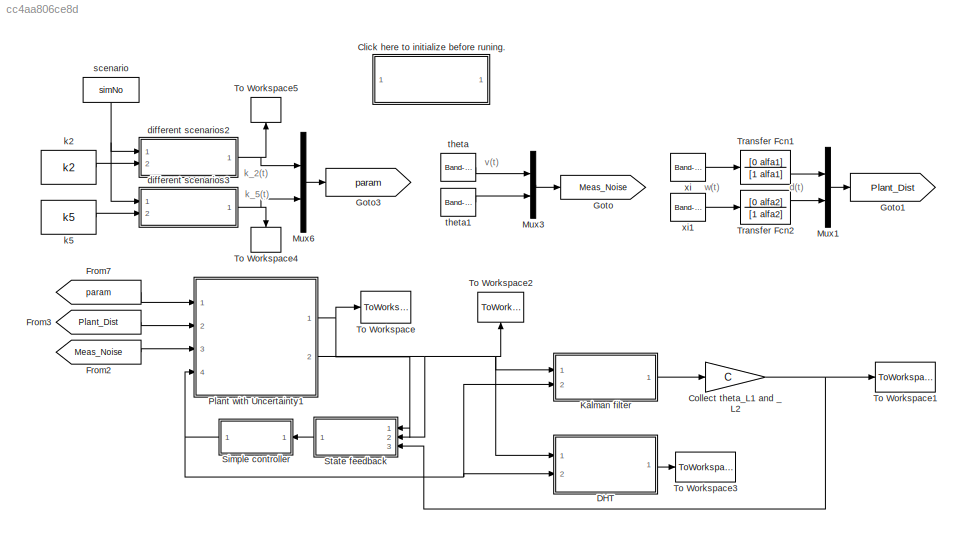
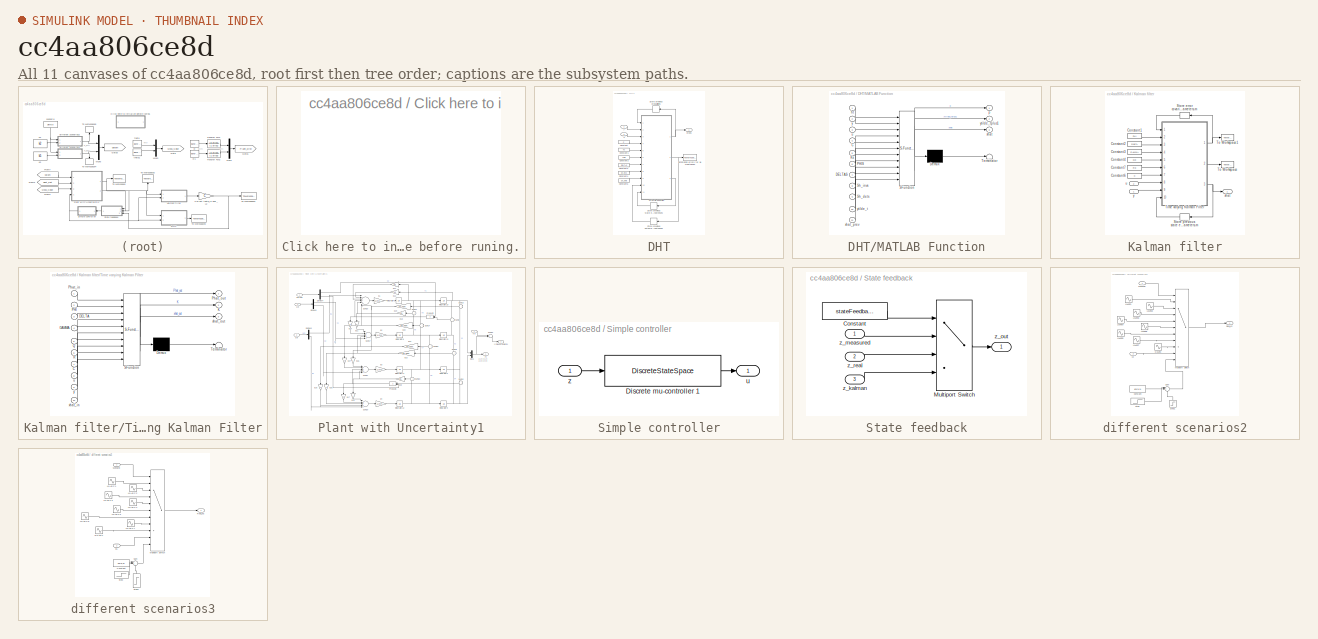
[diagram: thumbnail index - all 11 canvases of the model, root first then tree order]
MODEL slx_cc4aa806ce8d
KIND model
CONFIG AbsTol = auto
CONFIG EnableMultiTasking = on
CONFIG FixedStep = Ts
CONFIG MaxStep = auto
CONFIG MinStep = auto
CONFIG RelTol = 1e-3
CONFIG SampleTimeConstraint = Unconstrained
CONFIG Solver = ode45
CONFIG SolverName = ode45
CONFIG StartTime = 0.0
CONFIG StopTime = simTime
BLOCK [SubSystem] Click here to initialize before runing.
  OpenFcn = start_up
  Ports = []
  RequestExecContextInheritance = off
BLOCK [Gain] Collect theta_L1 and _L2
  Gain = C
  Multiplication = Matrix(K*u)
  OutDataTypeStr = Inherit: Inherit via internal rule
  ParamDataTypeStr = Inherit: Inherit via internal rule
  SaturateOnIntegerOverflow = off
BLOCK [SubSystem] DHT
  Ports = [2, 1]
  RequestExecContextInheritance = off
BLOCK [Constant] DHT/Constant
  Value = C
BLOCK [Constant] DHT/Constant1
  Value = Ks
BLOCK [Constant] DHT/Constant2
  Value = PHIS
BLOCK [Constant] DHT/Constant3
  Value = DELTAS
BLOCK [Constant] DHT/Constant4
  Value = Sh_invs
BLOCK [Constant] DHT/Constant5
  Value = Sh_dets
BLOCK [ToWorkspace] DHT/Estimation errors for all hypotheses
  FixptAsFi = on
  MaxDataPoints = inf
  Ports = [1]
  SampleTime = -1
  SaveFormat = Timeseries
  VariableName = ytilde
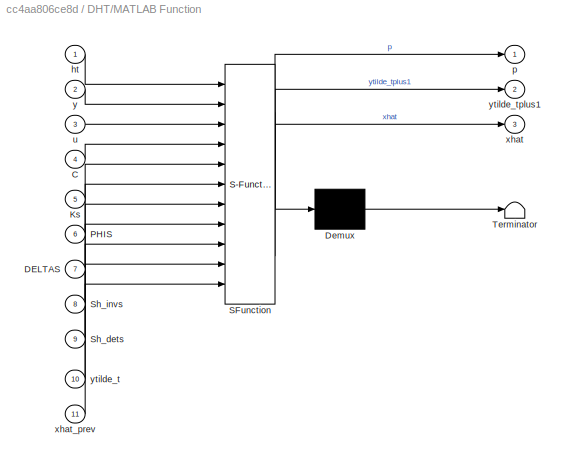
BLOCK [SubSystem] DHT/MATLAB Function
  ErrorFcn = Stateflow.Translate.translate
  PermitHierarchicalResolution = ExplicitOnly
  Ports = [11, 3]
  RequestExecContextInheritance = off
  SFBlockType = MATLAB Function
  TreatAsAtomicUnit = on
BLOCK [Demux] DHT/MATLAB Function/ Demux 
  Outputs = 1
  Ports = [1, 1]
BLOCK [S-Function] DHT/MATLAB Function/ SFunction 
  EnableBusSupport = on
  FunctionName = sf_sfun
  PortCounts = [11 4]
  Ports = [11, 4]
  SFcnIsStateOwnerBlock = off
  SFunctionDeploymentMode = off
  Tag = Stateflow S-Function main 4
BLOCK [Terminator] DHT/MATLAB Function/ Terminator 
BLOCK [Inport] DHT/MATLAB Function/C
  IconDisplay = Port number
  Port = 4
BLOCK [Inport] DHT/MATLAB Function/DELTAS
  IconDisplay = Port number
  Port = 7
BLOCK [Inport] DHT/MATLAB Function/Ks
  IconDisplay = Port number
  Port = 5
BLOCK [Inport] DHT/MATLAB Function/PHIS
  IconDisplay = Port number
  Port = 6
BLOCK [Inport] DHT/MATLAB Function/Sh_dets
  IconDisplay = Port number
  Port = 9
BLOCK [Inport] DHT/MATLAB Function/Sh_invs
  IconDisplay = Port number
  Port = 8
BLOCK [Inport] DHT/MATLAB Function/ht
  IconDisplay = Port number
BLOCK [Outport] DHT/MATLAB Function/p
  IconDisplay = Port number
BLOCK [Inport] DHT/MATLAB Function/u
  IconDisplay = Port number
  Port = 3
BLOCK [Outport] DHT/MATLAB Function/xhat
  IconDisplay = Port number
  Port = 3
BLOCK [Inport] DHT/MATLAB Function/xhat_prev
  IconDisplay = Port number
  Port = 11
BLOCK [Inport] DHT/MATLAB Function/y
  IconDisplay = Port number
  Port = 2
BLOCK [Inport] DHT/MATLAB Function/ytilde_t
  IconDisplay = Port number
  Port = 10
BLOCK [Outport] DHT/MATLAB Function/ytilde_tplus1
  IconDisplay = Port number
  Port = 2
BLOCK [Memory] DHT/Store previous estomation errors for all hypotheses
  InitialCondition = [zeros(2,1) zeros(2,1) zeros(2,1)]
BLOCK [Memory] DHT/Store previous probabilities
  InitialCondition = initial_probs
BLOCK [Memory] DHT/Store previous state estimations for all hypotheses
  InitialCondition = [initial_state initial_state initial_state]
BLOCK [Outport] DHT/probs
  IconDisplay = Port number
BLOCK [Inport] DHT/u
  IconDisplay = Port number
  Port = 2
BLOCK [Inport] DHT/y
  IconDisplay = Port number
BLOCK [From] From2
  GotoTag = Meas_Noise
BLOCK [From] From3
  GotoTag = Plant_Dist
BLOCK [From] From7
  GotoTag = param
BLOCK [Goto] Goto
  GotoTag = Meas_Noise
BLOCK [Goto] Goto1
  GotoTag = Plant_Dist
BLOCK [Goto] Goto3
  GotoTag = param
BLOCK [SubSystem] Kalman filter
  Ports = [2, 1]
  RequestExecContextInheritance = off
BLOCK [Constant] Kalman filter/Constant1
  Value = PHI
BLOCK [Constant] Kalman filter/Constant2
  Value = DELTA
BLOCK [Constant] Kalman filter/Constant3
  Value = GAMMA
BLOCK [Constant] Kalman filter/Constant4
  Value = Qd
BLOCK [Constant] Kalman filter/Constant6
  Value = C
BLOCK [Constant] Kalman filter/Constant7
  Value = Rd
BLOCK [Memory] Kalman filter/Store error covariance Initial P set in parameters.m
  InitialCondition = initial_P
BLOCK [Memory] Kalman filter/Store previous state estimaton Initial state set in parameters.m
  InitialCondition = initial_state
BLOCK [SubSystem] Kalman filter/Time varying Kalman Filter
  ErrorFcn = Stateflow.Translate.translate
  PermitHierarchicalResolution = ExplicitOnly
  Ports = [10, 3]
  RequestExecContextInheritance = off
  SFBlockType = MATLAB Function
  TreatAsAtomicUnit = on
BLOCK [Demux] Kalman filter/Time varying Kalman Filter/ Demux 
  Outputs = 1
  Ports = [1, 1]
BLOCK [S-Function] Kalman filter/Time varying Kalman Filter/ SFunction 
  EnableBusSupport = on
  FunctionName = sf_sfun
  PortCounts = [10 4]
  Ports = [10, 4]
  SFcnIsStateOwnerBlock = off
  SFunctionDeploymentMode = off
  Tag = Stateflow S-Function main 2
BLOCK [Terminator] Kalman filter/Time varying Kalman Filter/ Terminator 
BLOCK [Inport] Kalman filter/Time varying Kalman Filter/C
  IconDisplay = Port number
  Port = 7
BLOCK [Inport] Kalman filter/Time varying Kalman Filter/DELTA
  IconDisplay = Port number
  Port = 3
BLOCK [Inport] Kalman filter/Time varying Kalman Filter/GAMMA
  IconDisplay = Port number
  Port = 4
BLOCK [Outport] Kalman filter/Time varying Kalman Filter/K
  IconDisplay = Port number
  Port = 2
BLOCK [Inport] Kalman filter/Time varying Kalman Filter/PHI
  IconDisplay = Port number
  Port = 2
BLOCK [Inport] Kalman filter/Time varying Kalman Filter/Phat_in
  IconDisplay = Port number
BLOCK [Outport] Kalman filter/Time varying Kalman Filter/Phat_out
  IconDisplay = Port number
BLOCK [Inport] Kalman filter/Time varying Kalman Filter/Q
  IconDisplay = Port number
  Port = 5
BLOCK [Inport] Kalman filter/Time varying Kalman Filter/R
  IconDisplay = Port number
  Port = 6
BLOCK [Inport] Kalman filter/Time varying Kalman Filter/u
  IconDisplay = Port number
  Port = 8
BLOCK [Inport] Kalman filter/Time varying Kalman Filter/xhat_in
  IconDisplay = Port number
  Port = 10
BLOCK [Outport] Kalman filter/Time varying Kalman Filter/xhat_out
  IconDisplay = Port number
  Port = 3
BLOCK [Inport] Kalman filter/Time varying Kalman Filter/y
  IconDisplay = Port number
  Port = 9
BLOCK [ToWorkspace] Kalman filter/To Workspace
  FixptAsFi = on
  MaxDataPoints = inf
  Ports = [1]
  SampleTime = -1
  SaveFormat = Timeseries
  VariableName = K_out
BLOCK [ToWorkspace] Kalman filter/To Workspace1
  FixptAsFi = on
  MaxDataPoints = inf
  Ports = [1]
  SampleTime = -1
  SaveFormat = Timeseries
  VariableName = P_out
BLOCK [Inport] Kalman filter/u
  IconDisplay = Port number
  Port = 2
BLOCK [Outport] Kalman filter/xhat 
  IconDisplay = Port number
BLOCK [Inport] Kalman filter/y
  IconDisplay = Port number
BLOCK [Mux] Mux1
  DisplayOption = bar
  Inputs = 2
  Ports = [2, 1]
BLOCK [Mux] Mux3
  DisplayOption = bar
  Inputs = 2
  Ports = [2, 1]
BLOCK [Mux] Mux6
  DisplayOption = bar
  Inputs = 2
  Ports = [2, 1]
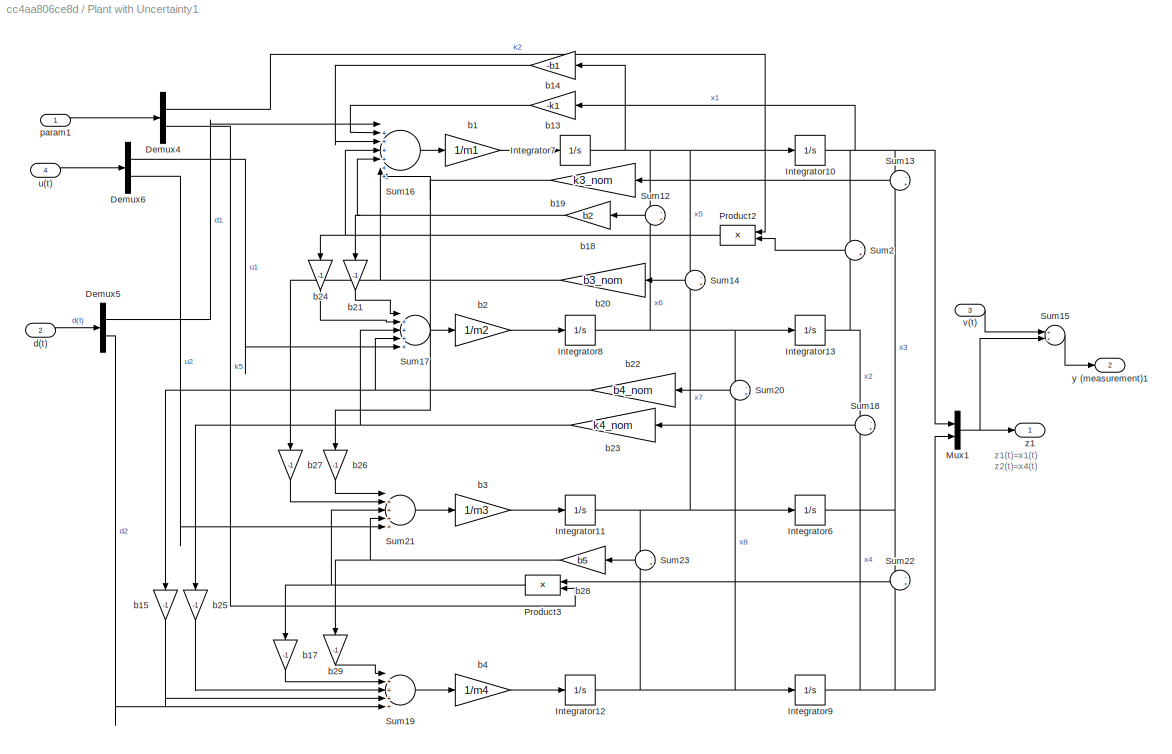
BLOCK [SubSystem] Plant with Uncertainty1
  Ports = [4, 2]
  RequestExecContextInheritance = off
BLOCK [Demux] Plant with Uncertainty1/Demux4
  DisplayOption = bar
  Outputs = 2
  Ports = [1, 2]
BLOCK [Demux] Plant with Uncertainty1/Demux5
  DisplayOption = bar
  Outputs = 2
  Ports = [1, 2]
BLOCK [Demux] Plant with Uncertainty1/Demux6
  DisplayOption = bar
  Outputs = 2
  Ports = [1, 2]
BLOCK [Integrator] Plant with Uncertainty1/Integrator10
  Ports = [1, 1]
BLOCK [Integrator] Plant with Uncertainty1/Integrator11
  Ports = [1, 1]
BLOCK [Integrator] Plant with Uncertainty1/Integrator12
  Ports = [1, 1]
BLOCK [Integrator] Plant with Uncertainty1/Integrator13
  Ports = [1, 1]
BLOCK [Integrator] Plant with Uncertainty1/Integrator6
  Ports = [1, 1]
BLOCK [Integrator] Plant with Uncertainty1/Integrator7
  Ports = [1, 1]
BLOCK [Integrator] Plant with Uncertainty1/Integrator8
  Ports = [1, 1]
BLOCK [Integrator] Plant with Uncertainty1/Integrator9
  Ports = [1, 1]
BLOCK [Mux] Plant with Uncertainty1/Mux1
  DisplayOption = bar
  Inputs = 2
  Ports = [2, 1]
BLOCK [Product] Plant with Uncertainty1/Product2
  Ports = [2, 1]
  RndMeth = Floor
BLOCK [Product] Plant with Uncertainty1/Product3
  Ports = [2, 1]
  RndMeth = Floor
BLOCK [Sum] Plant with Uncertainty1/Sum12
  IconShape = round
  Inputs = -+
  Ports = [2, 1]
BLOCK [Sum] Plant with Uncertainty1/Sum13
  IconShape = round
  Inputs = -+
  Ports = [2, 1]
BLOCK [Sum] Plant with Uncertainty1/Sum14
  IconShape = round
  Inputs = -+
  Ports = [2, 1]
BLOCK [Sum] Plant with Uncertainty1/Sum15
  Ports = [2, 1]
BLOCK [Sum] Plant with Uncertainty1/Sum16
  IconShape = round
  Inputs = |+++++++
  Ports = [7, 1]
BLOCK [Sum] Plant with Uncertainty1/Sum17
  IconShape = round
  Inputs = |+++++
  Ports = [5, 1]
BLOCK [Sum] Plant with Uncertainty1/Sum18
  IconShape = round
  Inputs = -+
  Ports = [2, 1]
BLOCK [Sum] Plant with Uncertainty1/Sum19
  IconShape = round
  Inputs = |+++++
  Ports = [5, 1]
BLOCK [Sum] Plant with Uncertainty1/Sum2
  IconShape = round
  Inputs = -+
  Ports = [2, 1]
BLOCK [Sum] Plant with Uncertainty1/Sum20
  IconShape = round
  Inputs = -+
  Ports = [2, 1]
BLOCK [Sum] Plant with Uncertainty1/Sum21
  IconShape = round
  Inputs = |+++++
  Ports = [5, 1]
BLOCK [Sum] Plant with Uncertainty1/Sum22
  IconShape = round
  Inputs = -+
  Ports = [2, 1]
BLOCK [Sum] Plant with Uncertainty1/Sum23
  IconShape = round
  Inputs = -+
  Ports = [2, 1]
BLOCK [Gain] Plant with Uncertainty1/b1
  Gain = 1/m1
BLOCK [Gain] Plant with Uncertainty1/b13
  Gain = -k1
BLOCK [Gain] Plant with Uncertainty1/b14
  Gain = -b1
BLOCK [Gain] Plant with Uncertainty1/b15
  Gain = -1
BLOCK [Gain] Plant with Uncertainty1/b17
  Gain = -1
BLOCK [Gain] Plant with Uncertainty1/b18
  Gain = b2
BLOCK [Gain] Plant with Uncertainty1/b19
  Gain = k3_nom
BLOCK [Gain] Plant with Uncertainty1/b2
  Gain = 1/m2
BLOCK [Gain] Plant with Uncertainty1/b20
  Gain = b3_nom
BLOCK [Gain] Plant with Uncertainty1/b21
  Gain = -1
BLOCK [Gain] Plant with Uncertainty1/b22
  Gain = b4_nom
BLOCK [Gain] Plant with Uncertainty1/b23
  Gain = k4_nom
BLOCK [Gain] Plant with Uncertainty1/b24
  Gain = -1
BLOCK [Gain] Plant with Uncertainty1/b25
  Gain = -1
BLOCK [Gain] Plant with Uncertainty1/b26
  Gain = -1
BLOCK [Gain] Plant with Uncertainty1/b27
  Gain = -1
BLOCK [Gain] Plant with Uncertainty1/b28
  Gain = b5
BLOCK [Gain] Plant with Uncertainty1/b29
  Gain = -1
BLOCK [Gain] Plant with Uncertainty1/b3
  Gain = 1/m3
BLOCK [Gain] Plant with Uncertainty1/b4
  Gain = 1/m4
BLOCK [Inport] Plant with Uncertainty1/d(t)
  IconDisplay = Port number
  Port = 2
BLOCK [Inport] Plant with Uncertainty1/param1
  IconDisplay = Port number
BLOCK [Inport] Plant with Uncertainty1/u(t)
  IconDisplay = Port number
  Port = 4
BLOCK [Inport] Plant with Uncertainty1/v(t)
  IconDisplay = Port number
  Port = 3
BLOCK [Outport] Plant with Uncertainty1/y (measurement)1
  IconDisplay = Port number
  Port = 2
BLOCK [Outport] Plant with Uncertainty1/z1
  IconDisplay = Port number
BLOCK [SubSystem] Simple controller
  Ports = [1, 1]
  RequestExecContextInheritance = off
BLOCK [DiscreteStateSpace] Simple controller/Discrete mu-controller 1
  A = A_D_Re_GNARC
  B = B_D_Re_GNARC
  C = C_D_Re_GNARC
  D = D_D_Re_GNARC
  Description = disp('sss')
  SampleTime = Ts
BLOCK [Outport] Simple controller/u
  IconDisplay = Port number
BLOCK [Inport] Simple controller/z
  IconDisplay = Port number
BLOCK [SubSystem] State feedback
  Ports = [3, 1]
  RequestExecContextInheritance = off
BLOCK [Constant] State feedback/Constant
  Value = stateFeedback
BLOCK [MultiPortSwitch] State feedback/Multiport Switch
  InputSameDT = off
  Ports = [4, 1]
  SaturateOnIntegerOverflow = off
BLOCK [Inport] State feedback/z_kalman
  IconDisplay = Port number
  Port = 3
BLOCK [Inport] State feedback/z_measured
  IconDisplay = Port number
BLOCK [Outport] State feedback/z_out
  IconDisplay = Port number
BLOCK [Inport] State feedback/z_real
  IconDisplay = Port number
  Port = 2
BLOCK [ToWorkspace] To Workspace
  FixptAsFi = on
  MaxDataPoints = inf
  Ports = [1]
  SampleTime = -1
  SaveFormat = Timeseries
  VariableName = z_real
BLOCK [ToWorkspace] To Workspace1
  FixptAsFi = on
  MaxDataPoints = inf
  Ports = [1]
  SampleTime = -1
  SaveFormat = Timeseries
  VariableName = z_kalman
BLOCK [ToWorkspace] To Workspace2
  FixptAsFi = on
  MaxDataPoints = inf
  Ports = [1]
  SampleTime = -1
  SaveFormat = Timeseries
  VariableName = y_real
BLOCK [ToWorkspace] To Workspace3
  FixptAsFi = on
  MaxDataPoints = inf
  Ports = [1]
  SampleTime = -1
  SaveFormat = Timeseries
  VariableName = probs
BLOCK [ToWorkspace] To Workspace4
  FixptAsFi = on
  MaxDataPoints = inf
  Ports = [1]
  SampleTime = -1
  SaveFormat = Timeseries
  VariableName = k5out
BLOCK [ToWorkspace] To Workspace5
  FixptAsFi = on
  MaxDataPoints = inf
  Ports = [1]
  SampleTime = -1
  SaveFormat = Timeseries
  VariableName = k2out
BLOCK [TransferFcn] Transfer Fcn1
  Denominator = [1 alfa1]
  Numerator = [0 alfa1]
BLOCK [TransferFcn] Transfer Fcn2
  Denominator = [1 alfa2]
  Numerator = [0 alfa2]
BLOCK [SubSystem] different scenarios2
  Ports = [2, 1]
  RequestExecContextInheritance = off
BLOCK [Constant] different scenarios2/Constant
  Value = ks(3,1)
BLOCK [Sin] different scenarios2/GNARC
  Amplitude = .75
  Bias = 1
  Frequency = 2*pi/700
  Phase = -pi/2
  Ports = [0, 1]
  SampleTime = 0
BLOCK [Sin] different scenarios2/LNARC1
  Amplitude = .875
  Bias = 1.625
  Frequency = 2*pi/700
  Phase = -pi/2
  Ports = [0, 1]
  SampleTime = 0
BLOCK [Sin] different scenarios2/LNARC2
  Amplitude = .55/2
  Bias = .775
  Frequency = 2*pi/700
  Phase = -pi/2
  Ports = [0, 1]
  SampleTime = 0
BLOCK [Sin] different scenarios2/LNARC3
  Amplitude = .75/2
  Bias = 1.4250
  Frequency = 2*pi/700
  Phase = -pi/2
  Ports = [0, 1]
  SampleTime = 0
BLOCK [Sin] different scenarios2/LNARC4
  Amplitude = .15/2
  Bias = .325
  Frequency = 2*pi/100
  Phase = -pi/2
  Ports = [0, 1]
  SampleTime = 0
BLOCK [Sin] different scenarios2/LNARC5
  Amplitude = .6
  Bias = 1.4
  Frequency = 2*pi/150
  Phase = -pi/2
  Ports = [0, 1]
  SampleTime = 0
BLOCK [Sin] different scenarios2/LNARC6
  Amplitude = .45/2
  Bias = .925
  Frequency = 2*pi/700
  Phase = -pi/2
  Ports = [0, 1]
  SampleTime = 0
BLOCK [Sin] different scenarios2/LNARC7
  Amplitude = .30
  Bias = 1.45
  Frequency = 2*pi/700
  Phase = -pi/2
  Ports = [0, 1]
  SampleTime = 0
BLOCK [MultiPortSwitch] different scenarios2/Multiport Switch
  InputSameDT = off
  Inputs = 10
  Ports = [11, 1]
  SaturateOnIntegerOverflow = off
BLOCK [Outport] different scenarios2/Real_k2
  IconDisplay = Port number
BLOCK [Step] different scenarios2/Step
  After = ks(2,1) - ks(3,1)
  SampleTime = 0
  Time = simTime / 3
BLOCK [Step] different scenarios2/Step1
  After = ks(1,1) - ks(2,1)
  SampleTime = 0
  Time = simTime * 2/3
BLOCK [Sum] different scenarios2/Sum
  IconShape = round
  InputSameDT = off
  Inputs = |+++
  OutDataTypeStr = Inherit: Inherit via internal rule
  Ports = [3, 1]
  SaturateOnIntegerOverflow = off
BLOCK [Inport] different scenarios2/k2
  IconDisplay = Port number
  Port = 2
BLOCK [Inport] different scenarios2/scenario
  IconDisplay = Port number
BLOCK [SubSystem] different scenarios3
  Ports = [2, 1]
  RequestExecContextInheritance = off
BLOCK [Constant] different scenarios3/Constant
  Value = ks(3,2)
BLOCK [Sin] different scenarios3/GNARC
  Amplitude = 1.6
  Bias = 1.8
  Frequency = 2*pi/700
  Phase = -pi/2
  Ports = [0, 1]
  SampleTime = 0
BLOCK [Sin] different scenarios3/LNARC1
  Amplitude = .8
  Bias = 1.7
  Frequency = 2*pi/700
  Phase = -3*pi/2
  Ports = [0, 1]
  SampleTime = 0
BLOCK [Sin] different scenarios3/LNARC2
  Amplitude = .8
  Bias = 2.6
  Frequency = 2*pi/700
  Phase = -pi/2
  Ports = [0, 1]
  SampleTime = 0
BLOCK [Sin] different scenarios3/LNARC3
  Amplitude = .8
  Bias = 2.6
  Frequency = 2*pi/700
  Phase = -pi/2
  Ports = [0, 1]
  SampleTime = 0
BLOCK [Sin] different scenarios3/LNARC4
  Amplitude = .8
  Bias = 1
  Frequency = 2*pi/700
  Phase = -pi/2
  Ports = [0, 1]
  SampleTime = 0
BLOCK [Sin] different scenarios3/LNARC5
  Amplitude = .8
  Bias = 1.5
  Frequency = 2*pi/150
  Phase = -pi/2
  Ports = [0, 1]
  SampleTime = 0
BLOCK [Sin] different scenarios3/LNARC6
  Amplitude = .8
  Bias = 1
  Frequency = 2*pi/700
  Phase = -pi/2
  Ports = [0, 1]
  SampleTime = 0
BLOCK [Sin] different scenarios3/LNARC7
  Amplitude = .8
  Bias = 1
  Frequency = 2*pi/700
  Phase = -pi/2
  Ports = [0, 1]
  SampleTime = 0
BLOCK [MultiPortSwitch] different scenarios3/Multiport Switch
  InputSameDT = off
  Inputs = 10
  Ports = [11, 1]
  SaturateOnIntegerOverflow = off
BLOCK [Outport] different scenarios3/Real_k5
  IconDisplay = Port number
BLOCK [Step] different scenarios3/Step
  After = ks(2,2) - ks(3,2)
  SampleTime = 0
  Time = simTime/3
BLOCK [Step] different scenarios3/Step1
  After = ks(1,2) - ks(2,2)
  SampleTime = 0
  Time = 2*simTime /3
BLOCK [Sum] different scenarios3/Sum
  IconShape = round
  InputSameDT = off
  Inputs = |+++
  OutDataTypeStr = Inherit: Inherit via internal rule
  Ports = [3, 1]
  SaturateOnIntegerOverflow = off
BLOCK [Inport] different scenarios3/k5
  IconDisplay = Port number
  Port = 2
BLOCK [Inport] different scenarios3/scenario
  IconDisplay = Port number
BLOCK [Constant] k2
  Value = k2
BLOCK [Constant] k5
  Value = k5
BLOCK [Constant] scenario
  Value = simNo
BLOCK [Reference] theta  REF=simulink/Sources/Band-Limited
White Noise
  Ports = [0, 1]
  SourceBlock = simulink/Sources/Band-Limited\nWhite Noise
  SourceProductBaseCode = SL
  SourceProductName = Simulink
  SourceType = Band-Limited White Noise.
BLOCK [Reference] theta1  REF=simulink/Sources/Band-Limited
White Noise
  Ports = [0, 1]
  SourceBlock = simulink/Sources/Band-Limited\nWhite Noise
  SourceProductBaseCode = SL
  SourceProductName = Simulink
  SourceType = Band-Limited White Noise.
BLOCK [Reference] xi  REF=simulink/Sources/Band-Limited
White Noise
  Ports = [0, 1]
  SourceBlock = simulink/Sources/Band-Limited\nWhite Noise
  SourceProductBaseCode = SL
  SourceProductName = Simulink
  SourceType = Band-Limited White Noise.
BLOCK [Reference] xi1  REF=simulink/Sources/Band-Limited
White Noise
  Ports = [0, 1]
  SourceBlock = simulink/Sources/Band-Limited\nWhite Noise
  SourceProductBaseCode = SL
  SourceProductName = Simulink
  SourceType = Band-Limited White Noise.
ANNOTATION (root): d(t)
ANNOTATION (root): k_2(t)
ANNOTATION (root): k_5(t)
ANNOTATION (root): v(t)
ANNOTATION (root): w(t)
ANNOTATION Plant with Uncertainty1: z1(t)=x1(t) z2(t)=x4(t)
NET Collect theta_L1 and _L2:1 -> State feedback:3, To Workspace1:1
LINE DHT/Constant1:1 -> DHT/MATLAB Function:5
LINE DHT/Constant2:1 -> DHT/MATLAB Function:6
LINE DHT/Constant3:1 -> DHT/MATLAB Function:7
LINE DHT/Constant4:1 -> DHT/MATLAB Function:8
LINE DHT/Constant5:1 -> DHT/MATLAB Function:9
LINE DHT/Constant:1 -> DHT/MATLAB Function:4
NET DHT/MATLAB Function:1 -> DHT/Store previous probabilities:1, DHT/probs:1
NET DHT/MATLAB Function:2 -> DHT/Estimation errors for all hypotheses:1, DHT/Store previous estomation errors for all hypotheses:1
LINE DHT/MATLAB Function:3 -> DHT/Store previous state estimations for all hypotheses:1
LINE DHT/Store previous estomation errors for all hypotheses:1 -> DHT/MATLAB Function:10
LINE DHT/Store previous probabilities:1 -> DHT/MATLAB Function:1
LINE DHT/Store previous state estimations for all hypotheses:1 -> DHT/MATLAB Function:11
LINE DHT/u:1 -> DHT/MATLAB Function:3
LINE DHT/y:1 -> DHT/MATLAB Function:2
LINE DHT:1 -> To Workspace3:1
LINE From2:1 -> Plant with Uncertainty1:3
LINE From3:1 -> Plant with Uncertainty1:2
LINE From7:1 -> Plant with Uncertainty1:1
LINE Kalman filter/Constant1:1 -> Kalman filter/Time varying Kalman Filter:2
LINE Kalman filter/Constant2:1 -> Kalman filter/Time varying Kalman Filter:3
LINE Kalman filter/Constant3:1 -> Kalman filter/Time varying Kalman Filter:4
LINE Kalman filter/Constant4:1 -> Kalman filter/Time varying Kalman Filter:5
LINE Kalman filter/Constant6:1 -> Kalman filter/Time varying Kalman Filter:7
LINE Kalman filter/Constant7:1 -> Kalman filter/Time varying Kalman Filter:6
LINE Kalman filter/Store error covariance Initial P set in parameters.m:1 -> Kalman filter/Time varying Kalman Filter:1
LINE Kalman filter/Store previous state estimaton Initial state set in parameters.m:1 -> Kalman filter/Time varying Kalman Filter:10
NET Kalman filter/Time varying Kalman Filter:1 -> Kalman filter/Store error covariance Initial P set in parameters.m:1, Kalman filter/To Workspace1:1
LINE Kalman filter/Time varying Kalman Filter:2 -> Kalman filter/To Workspace:1
NET Kalman filter/Time varying Kalman Filter:3 -> Kalman filter/Store previous state estimaton Initial state set in parameters.m:1, Kalman filter/xhat :1
LINE Kalman filter/u:1 -> Kalman filter/Time varying Kalman Filter:8
LINE Kalman filter/y:1 -> Kalman filter/Time varying Kalman Filter:9
LINE Kalman filter:1 -> Collect theta_L1 and _L2:1
LINE Mux1:1 -> Goto1:1
LINE Mux3:1 -> Goto:1
LINE Mux6:1 -> Goto3:1
LINE Plant with Uncertainty1/Demux4:1 -> Plant with Uncertainty1/Product2:1
LINE Plant with Uncertainty1/Demux4:2 -> Plant with Uncertainty1/Product3:2
LINE Plant with Uncertainty1/Demux5:1 -> Plant with Uncertainty1/Sum16:1
LINE Plant with Uncertainty1/Demux5:2 -> Plant with Uncertainty1/Sum19:5
LINE Plant with Uncertainty1/Demux6:1 -> Plant with Uncertainty1/Sum17:5
LINE Plant with Uncertainty1/Demux6:2 -> Plant with Uncertainty1/Sum21:5
NET Plant with Uncertainty1/Integrator10:1 -> Plant with Uncertainty1/Mux1:1, Plant with Uncertainty1/Sum13:1, Plant with Uncertainty1/Sum2:1, Plant with Uncertainty1/b13:1
NET Plant with Uncertainty1/Integrator11:1 -> Plant with Uncertainty1/Integrator6:1, Plant with Uncertainty1/Sum14:2, Plant with Uncertainty1/Sum23:1
NET Plant with Uncertainty1/Integrator12:1 -> Plant with Uncertainty1/Integrator9:1, Plant with Uncertainty1/Sum20:2, Plant with Uncertainty1/Sum23:2
NET Plant with Uncertainty1/Integrator13:1 -> Plant with Uncertainty1/Sum18:1, Plant with Uncertainty1/Sum2:2
NET Plant with Uncertainty1/Integrator6:1 -> Plant with Uncertainty1/Sum13:2, Plant with Uncertainty1/Sum22:1
NET Plant with Uncertainty1/Integrator7:1 -> Plant with Uncertainty1/Integrator10:1, Plant with Uncertainty1/Sum12:1, Plant with Uncertainty1/Sum14:1, Plant with Uncertainty1/b14:1
NET Plant with Uncertainty1/Integrator8:1 -> Plant with Uncertainty1/Integrator13:1, Plant with Uncertainty1/Sum12:2, Plant with Uncertainty1/Sum20:1
NET Plant with Uncertainty1/Integrator9:1 -> Plant with Uncertainty1/Mux1:2, Plant with Uncertainty1/Sum18:2, Plant with Uncertainty1/Sum22:2
NET Plant with Uncertainty1/Mux1:1 -> Plant with Uncertainty1/Sum15:2, Plant with Uncertainty1/z1:1
NET Plant with Uncertainty1/Product2:1 -> Plant with Uncertainty1/Sum16:4, Plant with Uncertainty1/b24:1
NET Plant with Uncertainty1/Product3:1 -> Plant with Uncertainty1/Sum21:3, Plant with Uncertainty1/b17:1
LINE Plant with Uncertainty1/Sum12:1 -> Plant with Uncertainty1/b18:1
LINE Plant with Uncertainty1/Sum13:1 -> Plant with Uncertainty1/b19:1
LINE Plant with Uncertainty1/Sum14:1 -> Plant with Uncertainty1/b20:1
LINE Plant with Uncertainty1/Sum15:1 -> Plant with Uncertainty1/y (measurement)1:1
LINE Plant with Uncertainty1/Sum16:1 -> Plant with Uncertainty1/b1:1
LINE Plant with Uncertainty1/Sum17:1 -> Plant with Uncertainty1/b2:1
LINE Plant with Uncertainty1/Sum18:1 -> Plant with Uncertainty1/b23:1
LINE Plant with Uncertainty1/Sum19:1 -> Plant with Uncertainty1/b4:1
LINE Plant with Uncertainty1/Sum20:1 -> Plant with Uncertainty1/b22:1
LINE Plant with Uncertainty1/Sum21:1 -> Plant with Uncertainty1/b3:1
LINE Plant with Uncertainty1/Sum22:1 -> Plant with Uncertainty1/Product3:1
LINE Plant with Uncertainty1/Sum23:1 -> Plant with Uncertainty1/b28:1
LINE Plant with Uncertainty1/Sum2:1 -> Plant with Uncertainty1/Product2:2
LINE Plant with Uncertainty1/b13:1 -> Plant with Uncertainty1/Sum16:2
LINE Plant with Uncertainty1/b14:1 -> Plant with Uncertainty1/Sum16:3
LINE Plant with Uncertainty1/b15:1 -> Plant with Uncertainty1/Sum19:4
LINE Plant with Uncertainty1/b17:1 -> Plant with Uncertainty1/Sum19:2
NET Plant with Uncertainty1/b18:1 -> Plant with Uncertainty1/Sum16:5, Plant with Uncertainty1/b21:1
NET Plant with Uncertainty1/b19:1 -> Plant with Uncertainty1/Sum16:7, Plant with Uncertainty1/b26:1
LINE Plant with Uncertainty1/b1:1 -> Plant with Uncertainty1/Integrator7:1
NET Plant with Uncertainty1/b20:1 -> Plant with Uncertainty1/Sum16:6, Plant with Uncertainty1/b27:1
LINE Plant with Uncertainty1/b21:1 -> Plant with Uncertainty1/Sum17:1
NET Plant with Uncertainty1/b22:1 -> Plant with Uncertainty1/Sum17:4, Plant with Uncertainty1/b15:1
NET Plant with Uncertainty1/b23:1 -> Plant with Uncertainty1/Sum17:3, Plant with Uncertainty1/b25:1
LINE Plant with Uncertainty1/b24:1 -> Plant with Uncertainty1/Sum17:2
LINE Plant with Uncertainty1/b25:1 -> Plant with Uncertainty1/Sum19:3
LINE Plant with Uncertainty1/b26:1 -> Plant with Uncertainty1/Sum21:1
LINE Plant with Uncertainty1/b27:1 -> Plant with Uncertainty1/Sum21:2
NET Plant with Uncertainty1/b28:1 -> Plant with Uncertainty1/Sum21:4, Plant with Uncertainty1/b29:1
LINE Plant with Uncertainty1/b29:1 -> Plant with Uncertainty1/Sum19:1
LINE Plant with Uncertainty1/b2:1 -> Plant with Uncertainty1/Integrator8:1
LINE Plant with Uncertainty1/b3:1 -> Plant with Uncertainty1/Integrator11:1
LINE Plant with Uncertainty1/b4:1 -> Plant with Uncertainty1/Integrator12:1
LINE Plant with Uncertainty1/d(t):1 -> Plant with Uncertainty1/Demux5:1
LINE Plant with Uncertainty1/param1:1 -> Plant with Uncertainty1/Demux4:1
LINE Plant with Uncertainty1/u(t):1 -> Plant with Uncertainty1/Demux6:1
LINE Plant with Uncertainty1/v(t):1 -> Plant with Uncertainty1/Sum15:1
NET Plant with Uncertainty1:1 -> State feedback:1, To Workspace:1
NET Plant with Uncertainty1:2 -> DHT:1, Kalman filter:1, State feedback:2, To Workspace2:1
LINE Simple controller/Discrete mu-controller 1:1 -> Simple controller/u:1
LINE Simple controller/z:1 -> Simple controller/Discrete mu-controller 1:1
NET Simple controller:1 -> DHT:2, Kalman filter:2, Plant with Uncertainty1:4
LINE State feedback/Constant:1 -> State feedback/Multiport Switch:1
LINE State feedback/Multiport Switch:1 -> State feedback/z_out:1
LINE State feedback/z_kalman:1 -> State feedback/Multiport Switch:4
LINE State feedback/z_measured:1 -> State feedback/Multiport Switch:2
LINE State feedback/z_real:1 -> State feedback/Multiport Switch:3
LINE State feedback:1 -> Simple controller:1
LINE Transfer Fcn1:1 -> Mux1:1
LINE Transfer Fcn2:1 -> Mux1:2
LINE different scenarios2/Constant:1 -> different scenarios2/Sum:1
LINE different scenarios2/GNARC:1 -> different scenarios2/Multiport Switch:9
LINE different scenarios2/LNARC1:1 -> different scenarios2/Multiport Switch:2
LINE different scenarios2/LNARC2:1 -> different scenarios2/Multiport Switch:3
LINE different scenarios2/LNARC3:1 -> different scenarios2/Multiport Switch:4
LINE different scenarios2/LNARC4:1 -> different scenarios2/Multiport Switch:5
LINE different scenarios2/LNARC5:1 -> different scenarios2/Multiport Switch:6
LINE different scenarios2/LNARC6:1 -> different scenarios2/Multiport Switch:7
LINE different scenarios2/LNARC7:1 -> different scenarios2/Multiport Switch:8
LINE different scenarios2/Multiport Switch:1 -> different scenarios2/Real_k2:1
LINE different scenarios2/Step1:1 -> different scenarios2/Sum:3
LINE different scenarios2/Step:1 -> different scenarios2/Sum:2
LINE different scenarios2/Sum:1 -> different scenarios2/Multiport Switch:11
LINE different scenarios2/k2:1 -> different scenarios2/Multiport Switch:10
LINE different scenarios2/scenario:1 -> different scenarios2/Multiport Switch:1
NET different scenarios2:1 -> Mux6:1, To Workspace5:1
LINE different scenarios3/Constant:1 -> different scenarios3/Sum:1
LINE different scenarios3/GNARC:1 -> different scenarios3/Multiport Switch:9
LINE different scenarios3/LNARC1:1 -> different scenarios3/Multiport Switch:2
LINE different scenarios3/LNARC2:1 -> different scenarios3/Multiport Switch:3
LINE different scenarios3/LNARC3:1 -> different scenarios3/Multiport Switch:4
LINE different scenarios3/LNARC4:1 -> different scenarios3/Multiport Switch:5
LINE different scenarios3/LNARC5:1 -> different scenarios3/Multiport Switch:6
LINE different scenarios3/LNARC6:1 -> different scenarios3/Multiport Switch:7
LINE different scenarios3/LNARC7:1 -> different scenarios3/Multiport Switch:8
LINE different scenarios3/Multiport Switch:1 -> different scenarios3/Real_k5:1
LINE different scenarios3/Step1:1 -> different scenarios3/Sum:3
LINE different scenarios3/Step:1 -> different scenarios3/Sum:2
LINE different scenarios3/Sum:1 -> different scenarios3/Multiport Switch:11
LINE different scenarios3/k5:1 -> different scenarios3/Multiport Switch:10
LINE different scenarios3/scenario:1 -> different scenarios3/Multiport Switch:1
NET different scenarios3:1 -> Mux6:2, To Workspace4:1
LINE k2:1 -> different scenarios2:2
LINE k5:1 -> different scenarios3:2
NET scenario:1 -> different scenarios2:1, different scenarios3:1
LINE theta1:1 -> Mux3:2
LINE theta:1 -> Mux3:1
LINE xi1:1 -> Transfer Fcn2:1
LINE xi:1 -> Transfer Fcn1:1
note: NET lines group one-source signal fan-out (src -> all destinations, sorted); 1:1 wires keep LINE
CHART Kalman filter/Time varying Kalman Filter states=1 transitions=1
  STATE_LABEL 'eML_blk_kernel()'
  STATE_LABEL "SCRIPT:\nfunction [Phat_out,K,xhat_out] = KF(Phat_in,PHI,DELTA,GAMMA,Q,R,C,u,    y,xhat_in)\n% returns the predicted mean (=state) and covariance (-covariance of \n% predicted state estimate error) for a time step Ts, ref Fossen 2011 table 11.1\n\n% PREDICTION\nxbar = PHI * xhat_in + DELTA * u;\nPbar = PHI * Phat_in * PHI' + GAMMA * Q * GAMMA';\n\nK = (Pbar * C') / (C * Pbar * C' + R);\nxhat_out = xbar + K ...<+103ch>"
CHART DHT/MATLAB Function states=1 transitions=1
  STATE_LABEL 'eML_blk_kernel()'
  STATE_LABEL 'SCRIPT:\nfunction [p,ytilde_tplus1,xhat] = DHT(ht,y,u,C,Ks,PHIS,DELTAS,Sh_invs,Sh_dets,ytilde_t,xhat_prev)\n%\n% ht        - the previous probabilities, h(t) = [h1(t) h2(t) h3(t)]\n% y         - the measurement (2x1) at time t+1\n% u         - the input value (2x1) at time t\n% C,Ks,PHIS,DELTAS,Sh_invs,Sh_dets - loads of physical quantities\n% ytilde_t  - the estimated error at time t, = [[error1], [erro...<+1694ch>'
